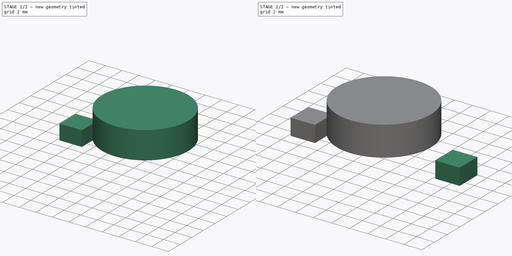
[diagram: build sequence overview — one tinted view per stage of 2, left to right]
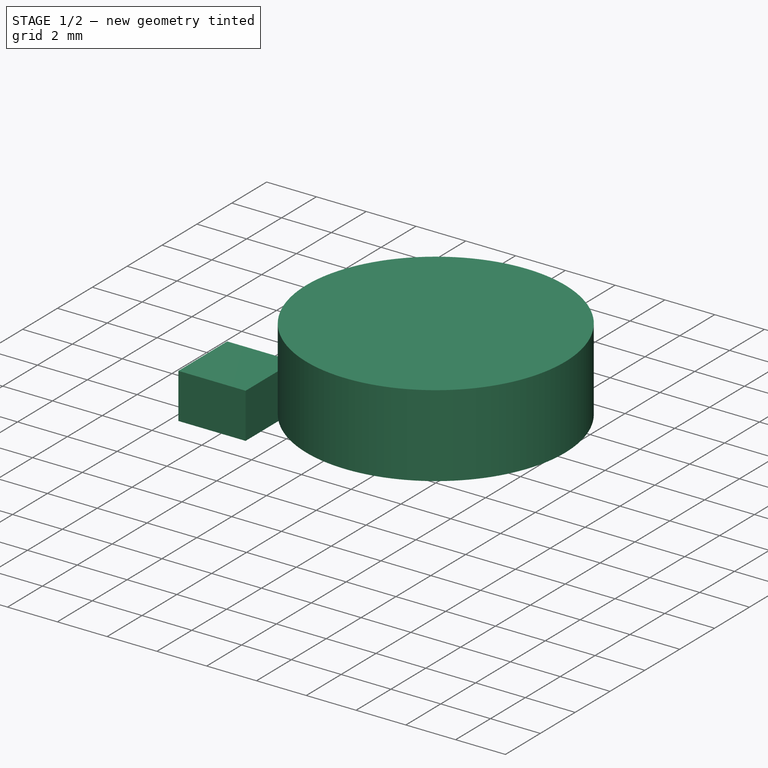
[diagram: stage 1 of 2 — iso view after this stage's code; geometry added in this stage tinted green]
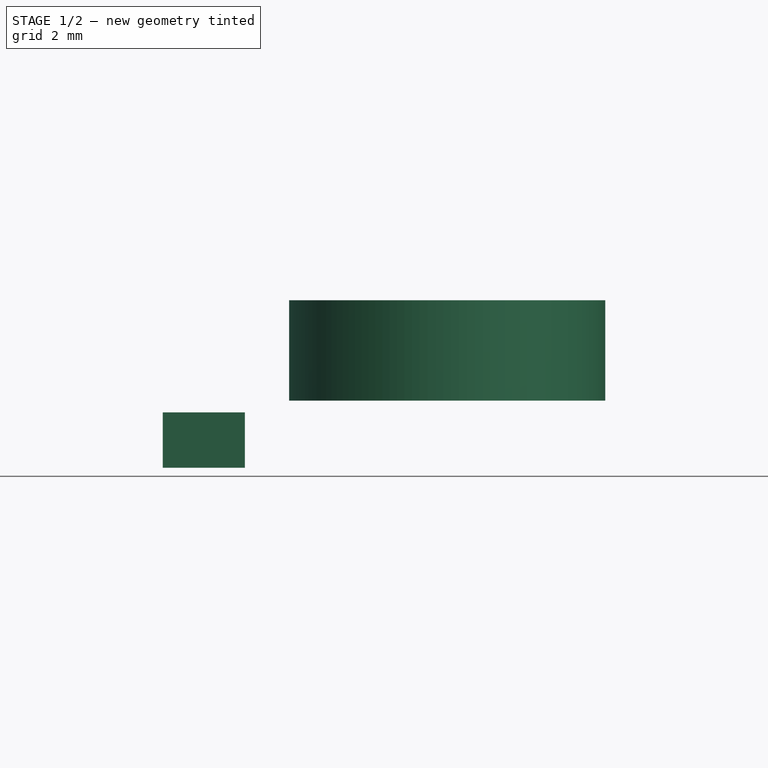
[diagram: stage 1 of 2 — front view after this stage's code; geometry added in this stage tinted green]
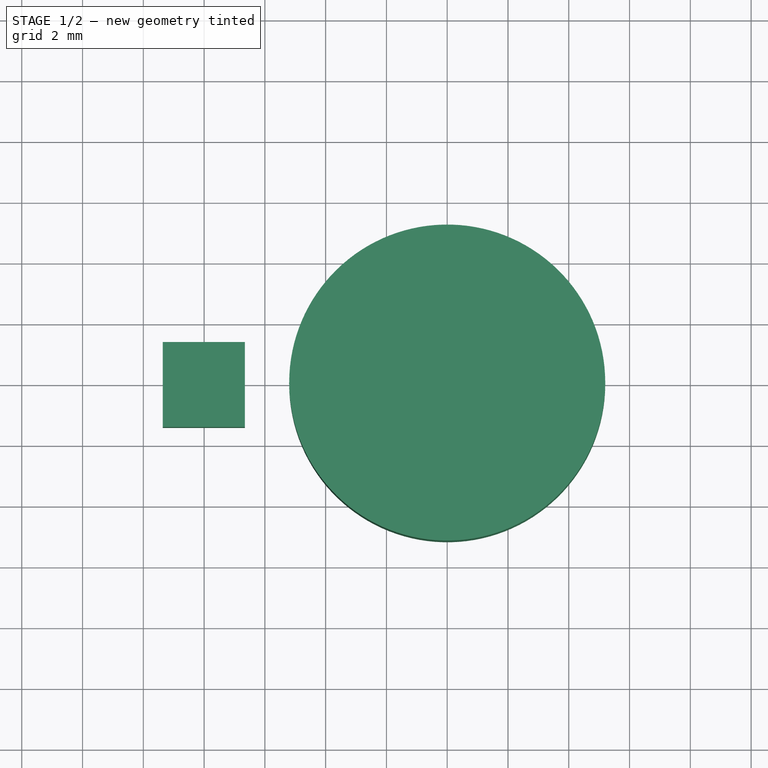
[diagram: stage 1 of 2 — top view after this stage's code; geometry added in this stage tinted green]
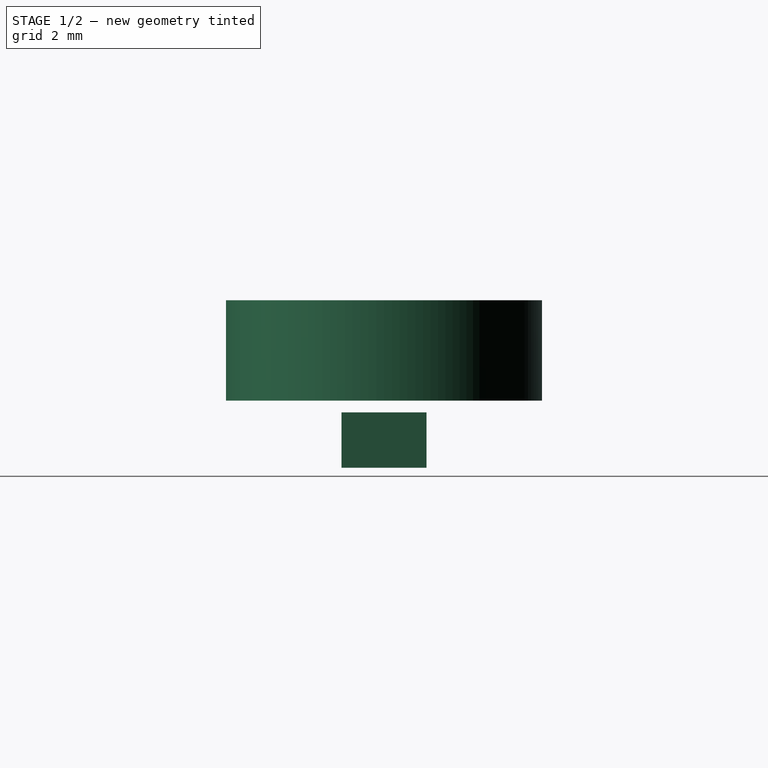
[diagram: stage 1 of 2 — right view after this stage's code; geometry added in this stage tinted green]
FCSTD DOCUMENT  (FreeCAD 0.17R13519 (Git))
Label: L_Bourns_SDR1806
License: All rights reserved
LicenseURL: http://en.wikipedia.org/wiki/All_rights_reserved
objects: Sketcher::SketchObject×7, PartDesign::Pad×7, PartDesign::Body×4, PartDesign::Plane×1, Part::Feature×1
note: 27 computed .brp shape members not serialized (recipe doc carries the construction recipe); baked Part::Feature solids carry a one-line shape summary decoded from their .brp

FEATURE [PartDesign::Body] Body001  label="PadBody1"
  Group = -> [Sketch004,Pad004]
  Origin = -> Origin001
  Tip = -> Pad004
FEATURE [Sketcher::SketchObject] Sketch005  label="PadSketch2"
  MapMode = 5
  Support = -> [XY_Plane002]
  sketch-geometry (4):
    g0: LineSegment StartX=-6.66 StartY=1.4 StartZ=0 EndX=-9.36 EndY=1.4 EndZ=0
    g1: LineSegment StartX=-9.36 StartY=1.4 StartZ=0 EndX=-9.36 EndY=-1.4 EndZ=0
    g2: LineSegment StartX=-9.36 StartY=-1.4 StartZ=0 EndX=-6.66 EndY=-1.4 EndZ=0
    g3: LineSegment StartX=-6.66 StartY=-1.4 StartZ=0 EndX=-6.66 EndY=1.4 EndZ=0
  constraints (12):
    c: Coincident(g0,g1)
    c: Coincident(g1,g2)
    c: Coincident(g2,g3)
    c: Coincident(g3,g0)
    c: Horizontal(g0)
    c: Horizontal(g2)
    c: Vertical(g1)
    c: Vertical(g3)
    c: Distance(g3) = 2.8
    c: Distance(g0) = 2.7
    c: Symmetric(g1,g0,g-1)
    c: Distance(g-1,g1) = 9.36
FEATURE [PartDesign::Pad] Pad005  label="PadFeature2"
  Length = 1.81
  Length2 = 0.01
  Profile = -> Sketch005
  Type = 4
FEATURE [PartDesign::Body] Body002  label="PadBody2"
  Group = -> [Sketch005,Pad005]
  Origin = -> Origin002
  Tip = -> Pad005
FEATURE [PartDesign::Plane] DatumPlane
  AttachmentOffset = pos=(0,0,2.2) rot=(0,0,1;0rad)
  MapMode = 5
  Placement = pos=(0,0,2.2) rot=(0,0,1;0rad)
  Support = -> [XY_Plane003]
FEATURE [Sketcher::SketchObject] Sketch006  label="CoilSketch"
  MapMode = 5
  Placement = pos=(0,0,2.2) rot=(0,0,1;0rad)
  Support = -> [DatumPlane]
  sketch-geometry (1):
    g0: Circle CenterX=0 CenterY=0 CenterZ=0 NormalX=0 NormalY=0 NormalZ=1 AngleXU=0 Radius=5.2
  constraints (2):
    c: Coincident(g0,g-1)
    c: Radius(g0) = 5.2
FEATURE [PartDesign::Pad] Pad006  label="CoilPad"
  Length = 3.3
  Length2 = 100
  Placement = pos=(0,0,2.2) rot=(0,0,1;0rad)
  Profile = -> Sketch006
  Type = 0
FEATURE [PartDesign::Body] Body003  label="Coil"
  Group = -> [Sketch006,DatumPlane,Pad006]
  Origin = -> Origin003
FEATURE [Part::Feature] Shape  label="L_Bourns_SDR1806"
  shape: bbox 18.72 x 14.3 x 6.61 mm, 32 faces (baked)
FEATURE [PartDesign::Body] Body
  Group = -> [Sketch,Pad,Sketch001,Pad001,Sketch002,Pad002,Sketch003,Pad003]
  Origin = -> Origin
  Tip = -> Pad003
FEATURE [Sketcher::SketchObject] Sketch001  label="CoilFormBottomSketch"
  MapMode = 5
  Placement = pos=(0,0,1.8) rot=(0,0,1;0rad)
  Support = -> [Pad003]
  sketch-geometry (1):
    g0: Circle CenterX=0 CenterY=0 CenterZ=0 NormalX=0 NormalY=0 NormalZ=1 AngleXU=0 Radius=6.3
  constraints (2):
    c: Coincident(g0,g-1)
    c: Radius(g0) = 6.3
FEATURE [Sketcher::SketchObject] Sketch002  label="CoilFormSketch"
  MapMode = 5
  Placement = pos=(0,0,2.2) rot=(0,0,1;0rad)
  Support = -> [Pad001]
  sketch-geometry (1):
    g0: Circle CenterX=0 CenterY=0 CenterZ=0 NormalX=0 NormalY=0 NormalZ=1 AngleXU=0 Radius=5.1
  constraints (2):
    c: Coincident(g0,g-1)
    c: Radius(g0) = 5.1
FEATURE [Sketcher::SketchObject] Sketch003  label="CoilFormTopSketch"
  MapMode = 5
  Placement = pos=(0,0,5.5) rot=(0,0,1;0rad)
  Support = -> [Pad002]
  sketch-geometry (1):
    g0: Circle CenterX=0 CenterY=0 CenterZ=0 NormalX=0 NormalY=0 NormalZ=1 AngleXU=0 Radius=6.3
  constraints (2):
    c: Coincident(g0,g-1)
    c: Radius(g0) = 6.3
FEATURE [PartDesign::Pad] Pad001  label="BottomCoil"
  BaseFeature = -> Pad
  Length = 0.4
  Length2 = 100
  Profile = -> Sketch001
  Type = 0
FEATURE [PartDesign::Pad] Pad002  label="CoilForm"
  BaseFeature = -> Pad001
  Length = 3.3
  Length2 = 100
  Profile = -> Sketch002
  Type = 0
FEATURE [PartDesign::Pad] Pad003  label="TopCoil"
  BaseFeature = -> Pad002
  Length = 1.1
  Length2 = 100
  Profile = -> Sketch003
  Type = 0
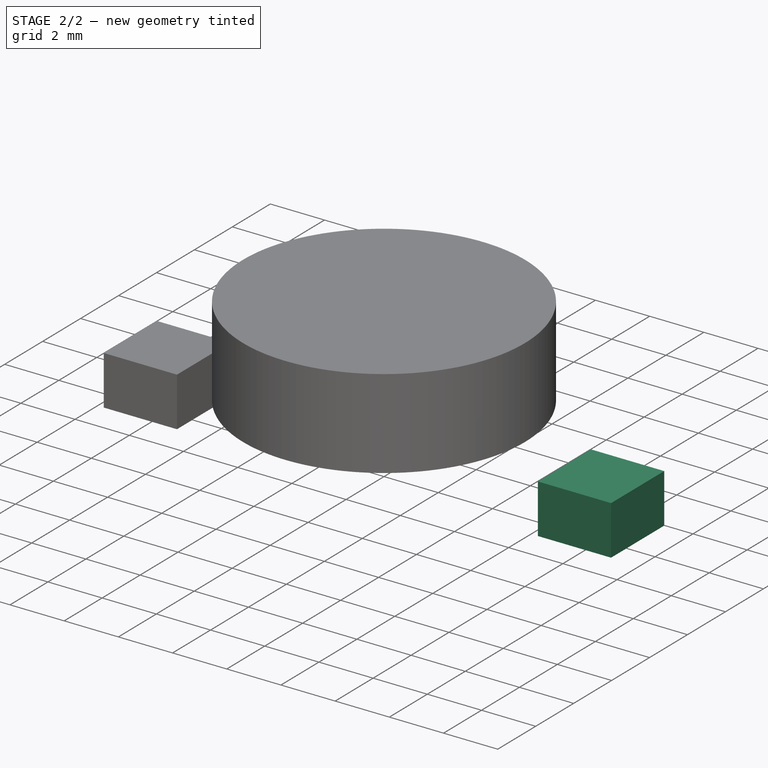
[diagram: stage 2 of 2 — iso view after this stage's code; geometry added in this stage tinted green]
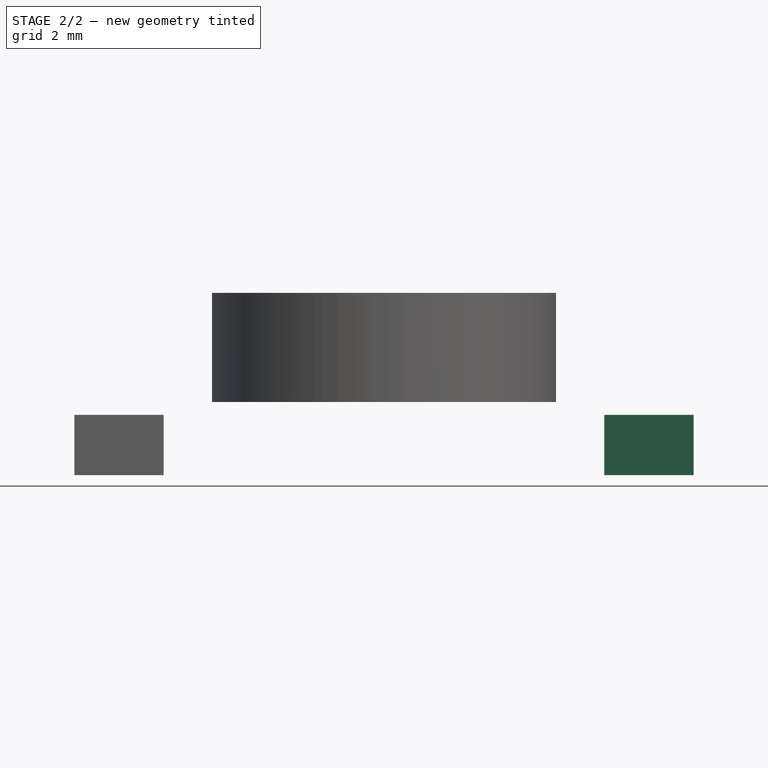
[diagram: stage 2 of 2 — front view after this stage's code; geometry added in this stage tinted green]
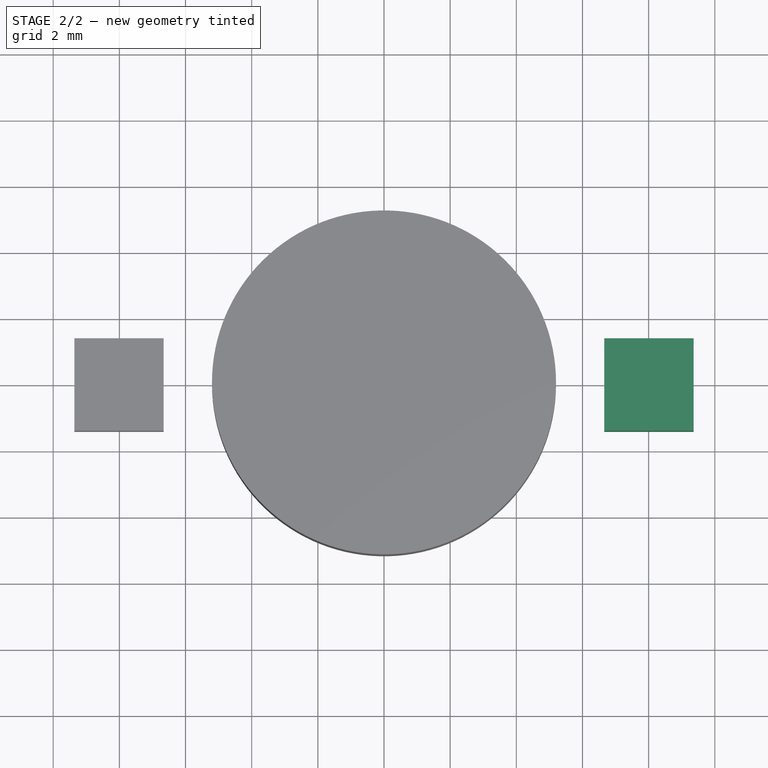
[diagram: stage 2 of 2 — top view after this stage's code; geometry added in this stage tinted green]
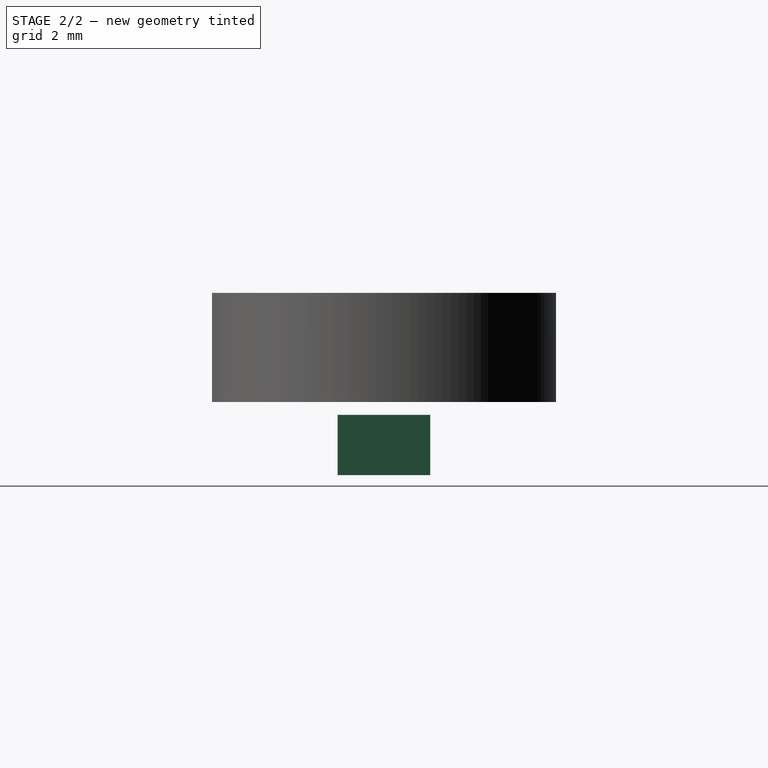
[diagram: stage 2 of 2 — right view after this stage's code; geometry added in this stage tinted green]
FEATURE [Sketcher::SketchObject] Sketch  label="BaseSketch"
  MapMode = 5
  Support = -> [XY_Plane]
  sketch-geometry (8):
    g0: ArcOfCircle CenterX=0 CenterY=0 CenterZ=0 NormalX=0 NormalY=0 NormalZ=1 AngleXU=0 Radius=7.15 StartAngle=0.996329 EndAngle=2.14526
    g1: ArcOfCircle CenterX=0 CenterY=0 CenterZ=0 NormalX=0 NormalY=0 NormalZ=1 AngleXU=0 Radius=7.15 StartAngle=4.13792 EndAngle=5.28686
    g2: LineSegment StartX=3.88522 StartY=6.00229 StartZ=0 EndX=9.35 EndY=2.465 EndZ=0
    g3: LineSegment StartX=9.35 StartY=2.465 StartZ=0 EndX=9.35 EndY=-2.465 EndZ=0
    g4: LineSegment StartX=9.35 StartY=-2.465 StartZ=0 EndX=3.88522 EndY=-6.00229 EndZ=0
    g5: LineSegment StartX=-3.88522 StartY=-6.00229 StartZ=0 EndX=-9.35 EndY=-2.465 EndZ=0
    g6: LineSegment StartX=-9.35 StartY=-2.465 StartZ=0 EndX=-9.35 EndY=2.465 EndZ=0
    g7: LineSegment StartX=-9.35 StartY=2.465 StartZ=0 EndX=-3.88522 EndY=6.00229 EndZ=0
  constraints (18):
    c: Coincident(g0,g-1)
    c: Radius(g0) = 7.15
    c: Coincident(g1,g-1)
    c: Equal(g1,g0)
    c: Coincident(g2,g3)
    c: Vertical(g3)
    c: Coincident(g3,g4)
    c: Coincident(g5,g6)
    c: Coincident(g6,g7)
    c: Tangent(g1,g5) = 1.5708
    c: Tangent(g4,g1) = 1.5708
    c: Tangent(g0,g2) = 1.5708
    c: Tangent(g7,g0) = 1.5708
    c: Symmetric(g6,g2,g-2)
    c: Symmetric(g2,g3,g-1)
    c: Distance(g2,g6) = 18.7
    c: Symmetric(g5,g3,g-2)
    c: Distance(g3) = 4.93
FEATURE [PartDesign::Pad] Pad  label="Base"
  Length = 1.8
  Length2 = 100
  Profile = -> Sketch
  Type = 0
FEATURE [Sketcher::SketchObject] Sketch004  label="PadSketch1"
  MapMode = 5
  Support = -> [XY_Plane001]
  sketch-geometry (4):
    g0: LineSegment StartX=9.36 StartY=1.4 StartZ=0 EndX=6.66 EndY=1.4 EndZ=0
    g1: LineSegment StartX=6.66 StartY=1.4 StartZ=0 EndX=6.66 EndY=-1.4 EndZ=0
    g2: LineSegment StartX=6.66 StartY=-1.4 StartZ=0 EndX=9.36 EndY=-1.4 EndZ=0
    g3: LineSegment StartX=9.36 StartY=-1.4 StartZ=0 EndX=9.36 EndY=1.4 EndZ=0
  constraints (12):
    c: Coincident(g0,g1)
    c: Coincident(g1,g2)
    c: Coincident(g2,g3)
    c: Coincident(g3,g0)
    c: Horizontal(g0)
    c: Horizontal(g2)
    c: Vertical(g1)
    c: Vertical(g3)
    c: Distance(g3) = 2.8
    c: Distance(g0) = 2.7
    c: Symmetric(g1,g0,g-1)
    c: Distance(g-1,g3) = 9.36
FEATURE [PartDesign::Pad] Pad004  label="PadFeature1"
  Length = 1.81
  Length2 = 0.01
  Profile = -> Sketch004
  Type = 4
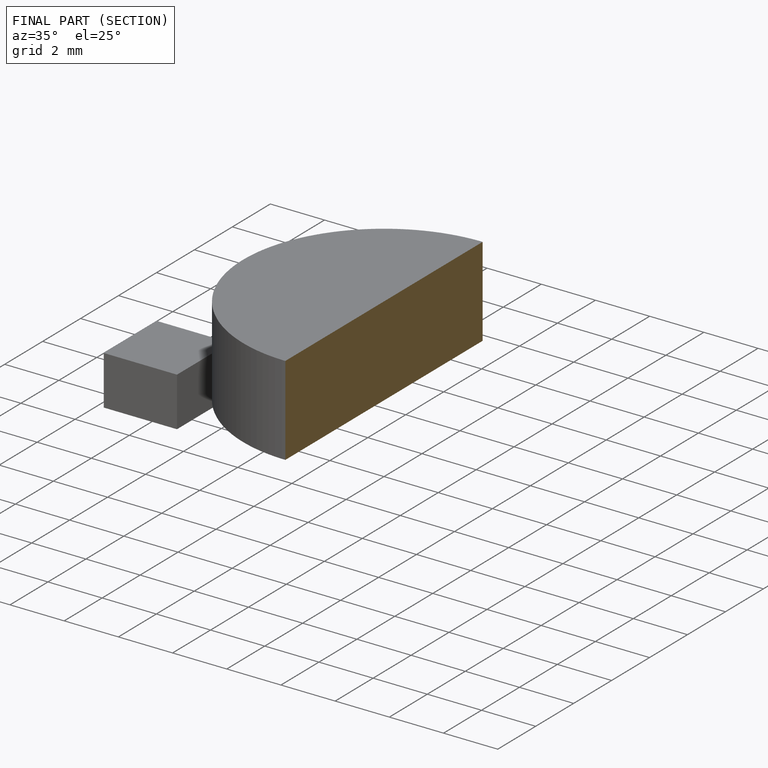
[diagram: finished part — half-section view (interior)]
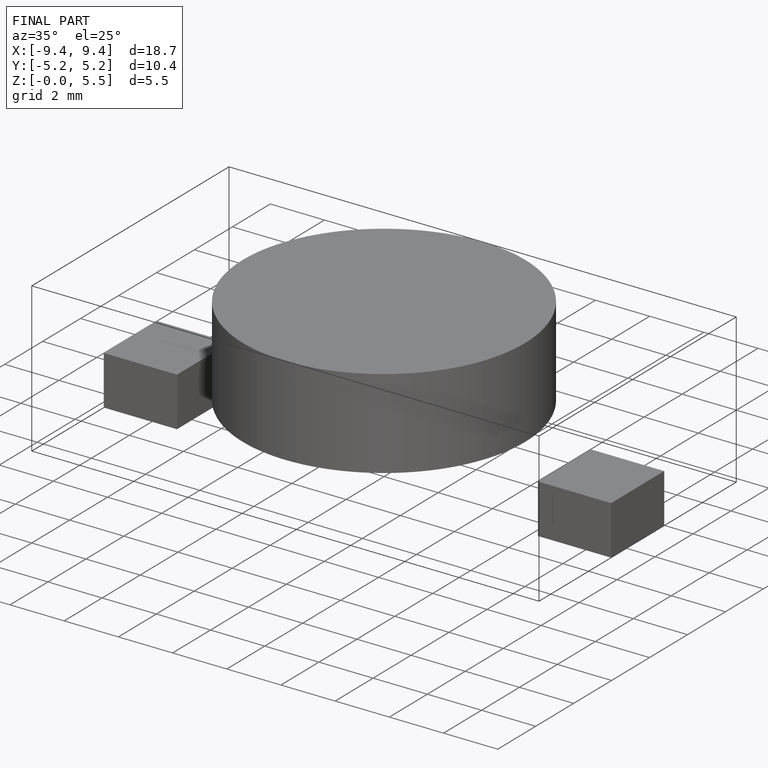
[diagram: finished part — iso view with bounding-box wireframe]
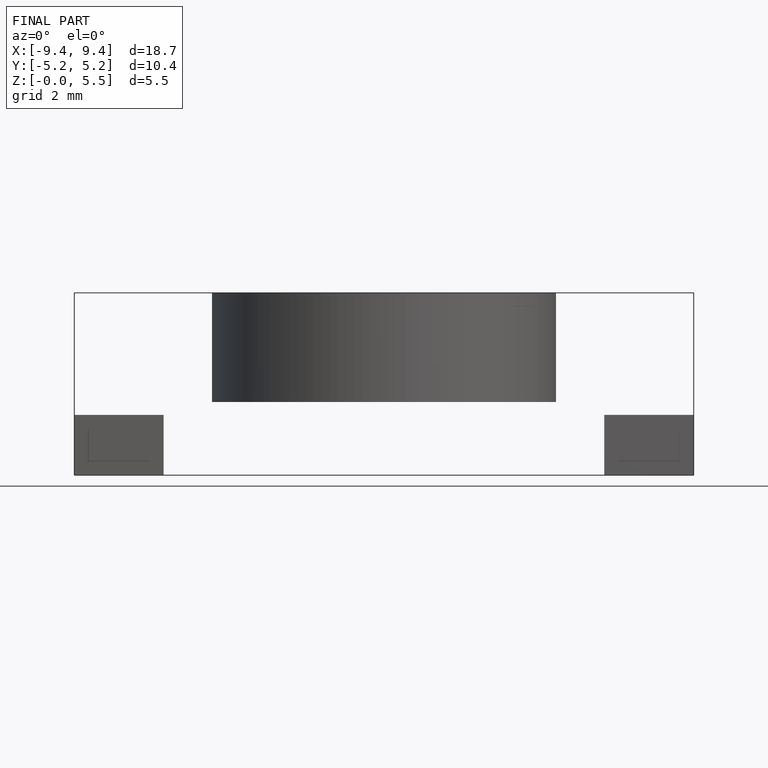
[diagram: finished part — front view with bounding-box wireframe]
